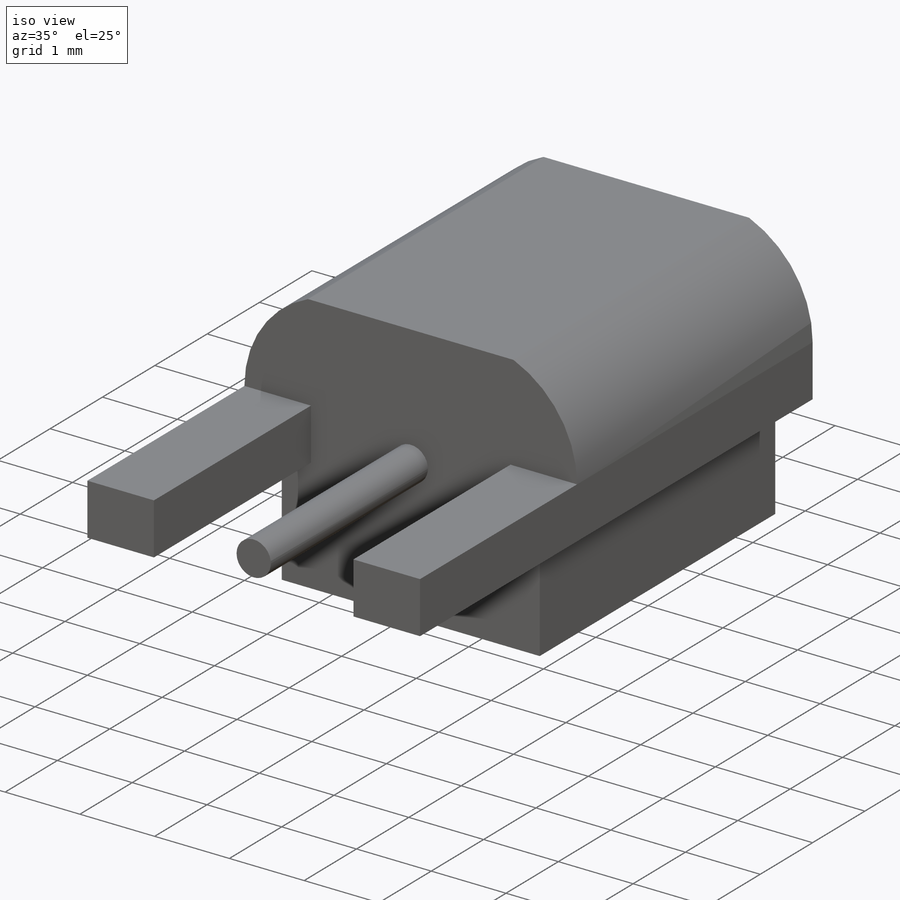
[diagram: iso view]
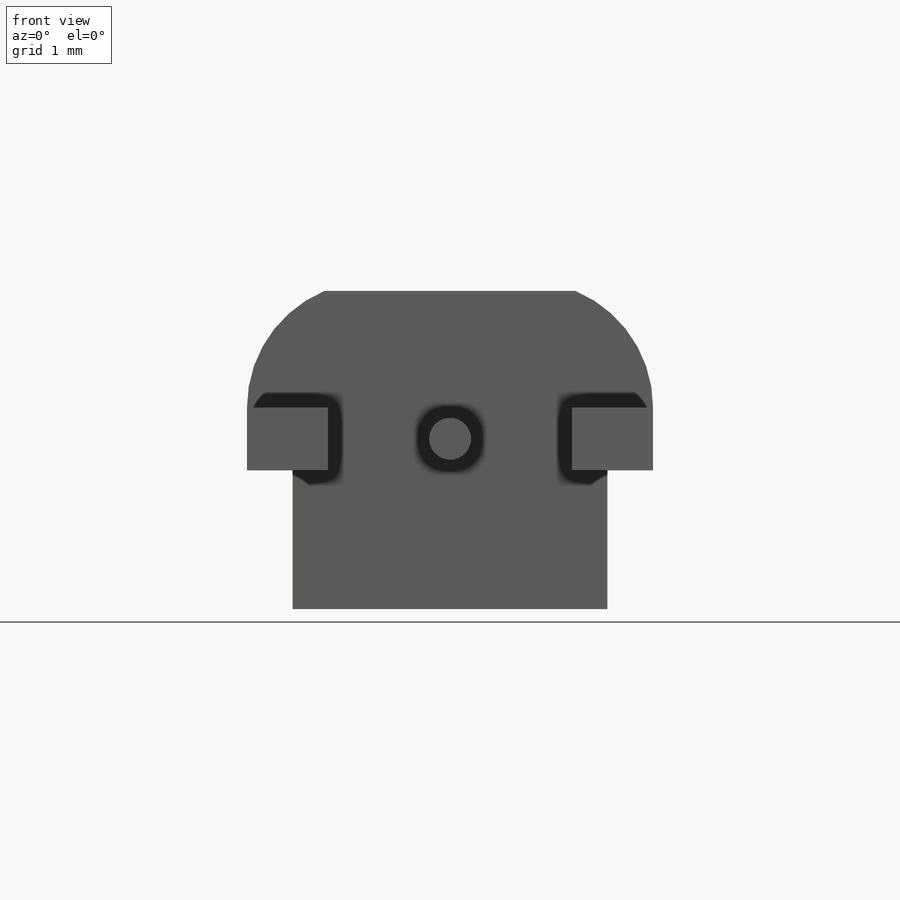
[diagram: front view]
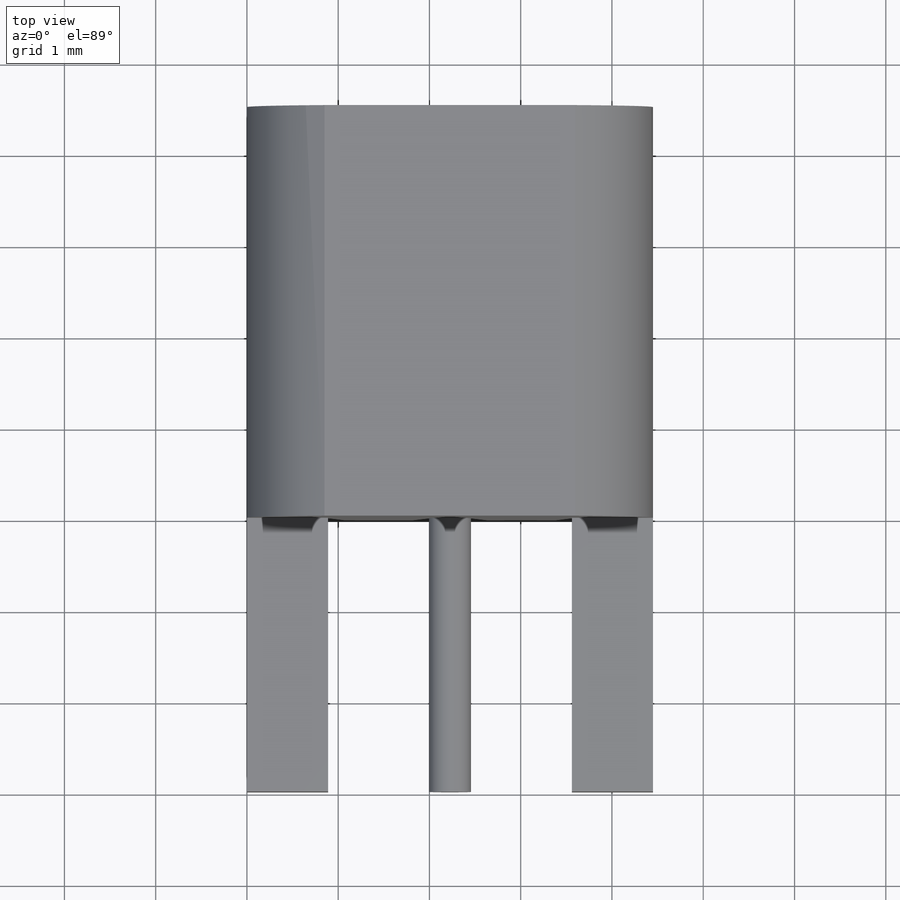
[diagram: top view]
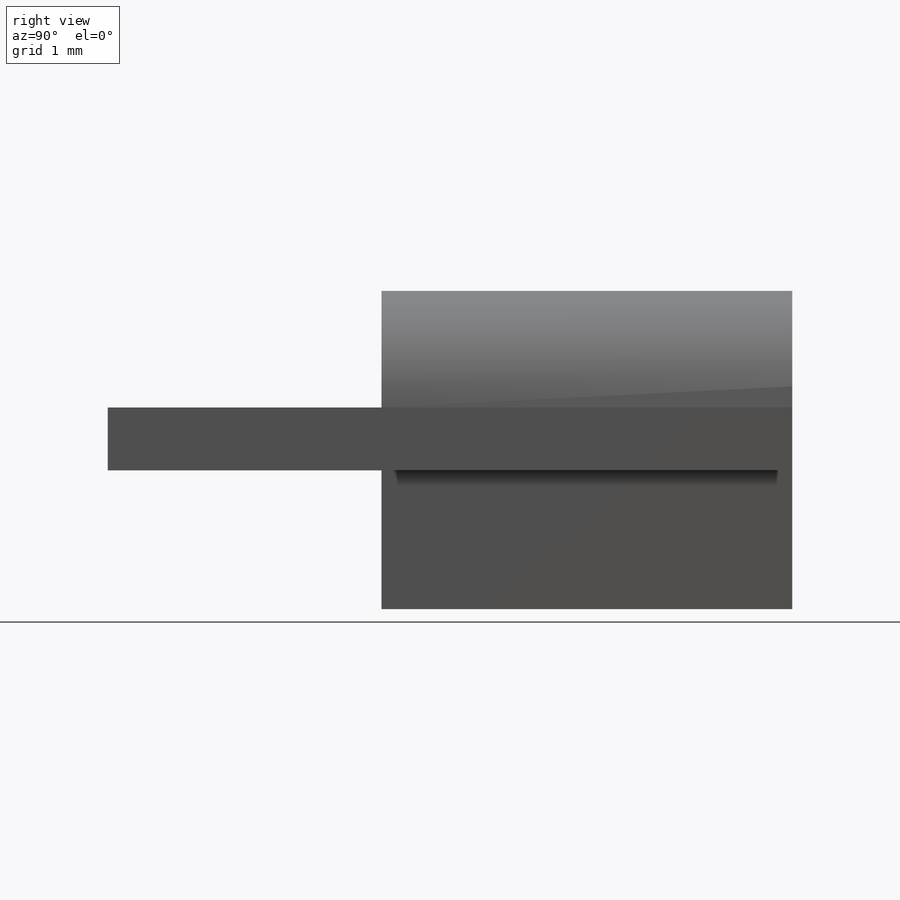
[diagram: right view]
SOLIDWORKS PART (.sldprt)
format: sldprt  version: not decoded by parser v0  size: 197,632 bytes
history: native  units: mm
features: sketch x5, extrude x4, material x1, cut_extrude x1 (+12 scaffold rows collapsed)
feature tree (23):
  scaffold x12  (default folders/planes/origin — collapsed)
  material  "Material <not specified>"
  sketch  "Sketch1"  dims[c1.D1=~46.066993mm c1.D2=~36.421197mm c2.D1=~1.599889mm c2.D2=~1.173252mm c3.D1=~3.140078mm]
  extrude  "Boss-Extrude2"  Depth=0.69mm
  sketch  "Sketch3"  dims[c1.D1=~4.27332mm c1.D2=~3.475602mm c2.D1=0.5mm]
  extrude  "Boss-Extrude3"  Depth=1.52mm
  sketch  "Sketch4"  dims[D1=~2.201633mm]
  extrude  "Boss-Extrude4"  Depth=3mm
  sketch  "Sketch5"  dims[D1=4.45mm]
  extrude  "Boss-Extrude5"  Depth=4.5mm
  sketch  "Sketch6"  dims[D1=~1.033312mm]
  cut_extrude  "Cut-Extrude1"  Depth=3mm
decode coverage: 10 of 10 modeling features carry decoded parameters
note: ~ marks probable driven/reference dimensions
note: suppression state not decoded; provenance and decode notes live in map.json
